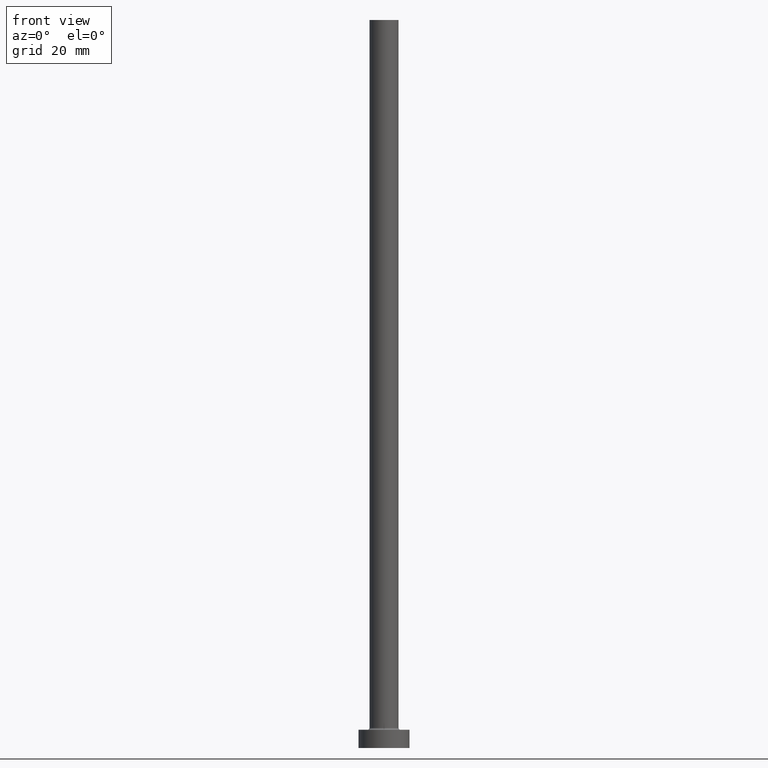
[diagram: clean part render]
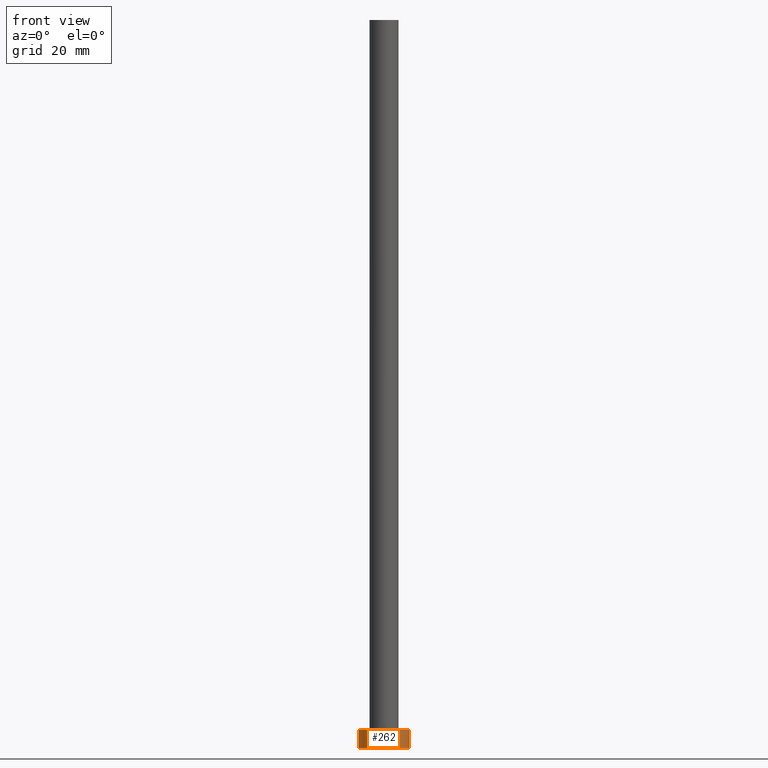
[diagram: same view with one face highlighted and labeled with its STEP entity id]
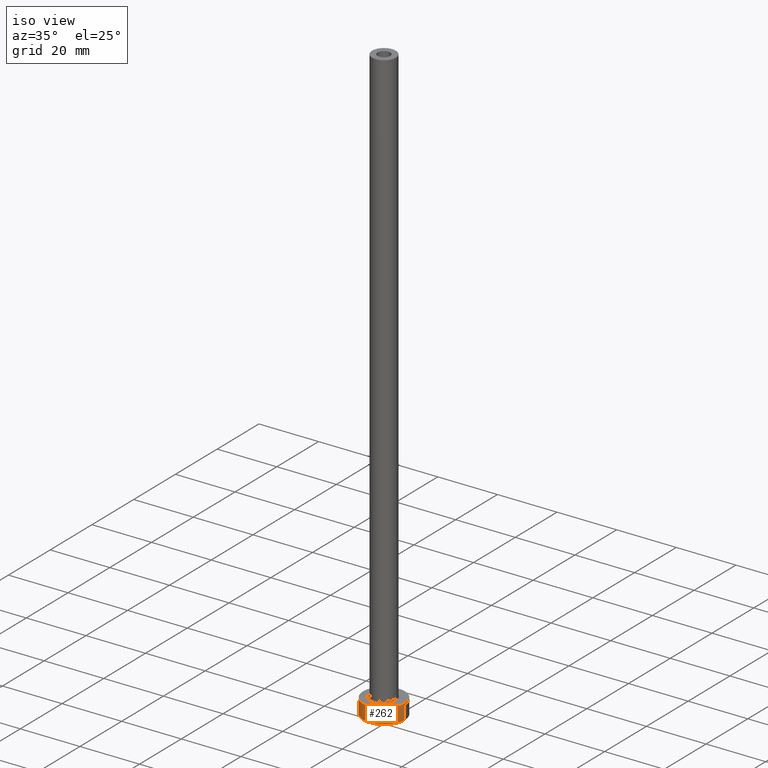
[diagram: same view with one face highlighted and labeled with its STEP entity id]
A machine part, front view. The second image highlights one B-rep face of the part: STEP entity #262.
A second angle (iso view) of the same face is appended — the face is thin or edge-on in the first view.
In plain terms, the highlighted cylindrical surface (edge-blend (fillet) strip) has radius 7 mm, axis along (-0, -0, -1).
Its self-contained STEP definition (entity closure, byte-faithful):
#10 = AXIS2_PLACEMENT_3D ( 'NONE', #173, #401, #250 ) ;
#11 = EDGE_CURVE ( 'NONE', #335, #71, #447, .T. ) ;
#32 = ORIENTED_EDGE ( 'NONE', *, *, #139, .T. ) ;
#39 = EDGE_LOOP ( 'NONE', ( #396, #74, #32, #243 ) ) ;
#57 = DIRECTION ( 'NONE',  ( -0.000000000000000000, -0.000000000000000000, -1.000000000000000000 ) ) ;
#67 = AXIS2_PLACEMENT_3D ( 'NONE', #247, #413, #381 ) ;
#69 = VERTEX_POINT ( 'NONE', #346 ) ;
#71 = VERTEX_POINT ( 'NONE', #158 ) ;
#74 = ORIENTED_EDGE ( 'NONE', *, *, #397, .F. ) ;
#106 = DIRECTION ( 'NONE',  ( -0.000000000000000000, -0.000000000000000000, -1.000000000000000000 ) ) ;
#123 = DIRECTION ( 'NONE',  ( -0.000000000000000000, -0.000000000000000000, -1.000000000000000000 ) ) ;
#132 = CARTESIAN_POINT ( 'NONE',  ( 0.000000000000000000, 0.000000000000000000, 5.000000000000000000 ) ) ;
#139 = EDGE_CURVE ( 'NONE', #294, #69, #150, .T. ) ;
#150 = LINE ( 'NONE', #172, #257 ) ;
#158 = CARTESIAN_POINT ( 'NONE',  ( 7.000000000000000000, 8.572527594031473190E-16, 0.000000000000000000 ) ) ;
#169 = VECTOR ( 'NONE', #57, 1000.000000000000000 ) ;
#171 = CIRCLE ( 'NONE', #67, 7.000000000000000000 ) ;
#172 = CARTESIAN_POINT ( 'NONE',  ( -7.000000000000000000, 0.000000000000000000, 5.000000000000000000 ) ) ;
#173 = CARTESIAN_POINT ( 'NONE',  ( 0.000000000000000000, 0.000000000000000000, 0.000000000000000000 ) ) ;
#236 = FACE_OUTER_BOUND ( 'NONE', #39, .T. ) ;
#243 = ORIENTED_EDGE ( 'NONE', *, *, #289, .T. ) ;
#247 = CARTESIAN_POINT ( 'NONE',  ( 0.000000000000000000, 0.000000000000000000, 5.000000000000000000 ) ) ;
#250 = DIRECTION ( 'NONE',  ( 1.000000000000000000, 0.000000000000000000, 0.000000000000000000 ) ) ;
#257 = VECTOR ( 'NONE', #106, 1000.000000000000000 ) ;
#262 = ADVANCED_FACE ( 'NONE', ( #236 ), #336, .T. ) ;
#281 = DIRECTION ( 'NONE',  ( -1.000000000000000000, 0.000000000000000000, 0.000000000000000000 ) ) ;
#289 = EDGE_CURVE ( 'NONE', #69, #71, #326, .T. ) ;
#294 = VERTEX_POINT ( 'NONE', #460 ) ;
#318 = CARTESIAN_POINT ( 'NONE',  ( 7.000000000000000000, 8.572527594031473190E-16, 5.000000000000000000 ) ) ;
#326 = CIRCLE ( 'NONE', #10, 7.000000000000000000 ) ;
#335 = VERTEX_POINT ( 'NONE', #318 ) ;
#336 = CYLINDRICAL_SURFACE ( 'NONE', #459, 7.000000000000000000 ) ;
#346 = CARTESIAN_POINT ( 'NONE',  ( -7.000000000000000000, 0.000000000000000000, 0.000000000000000000 ) ) ;
#381 = DIRECTION ( 'NONE',  ( 1.000000000000000000, 0.000000000000000000, 0.000000000000000000 ) ) ;
#391 = CARTESIAN_POINT ( 'NONE',  ( 7.000000000000000000, 8.572527594031473190E-16, 5.000000000000000000 ) ) ;
#396 = ORIENTED_EDGE ( 'NONE', *, *, #11, .F. ) ;
#397 = EDGE_CURVE ( 'NONE', #294, #335, #171, .T. ) ;
#401 = DIRECTION ( 'NONE',  ( 0.000000000000000000, 0.000000000000000000, 1.000000000000000000 ) ) ;
#413 = DIRECTION ( 'NONE',  ( 0.000000000000000000, 0.000000000000000000, 1.000000000000000000 ) ) ;
#447 = LINE ( 'NONE', #391, #169 ) ;
#459 = AXIS2_PLACEMENT_3D ( 'NONE', #132, #123, #281 ) ;
#460 = CARTESIAN_POINT ( 'NONE',  ( -7.000000000000000000, 0.000000000000000000, 5.000000000000000000 ) ) ;